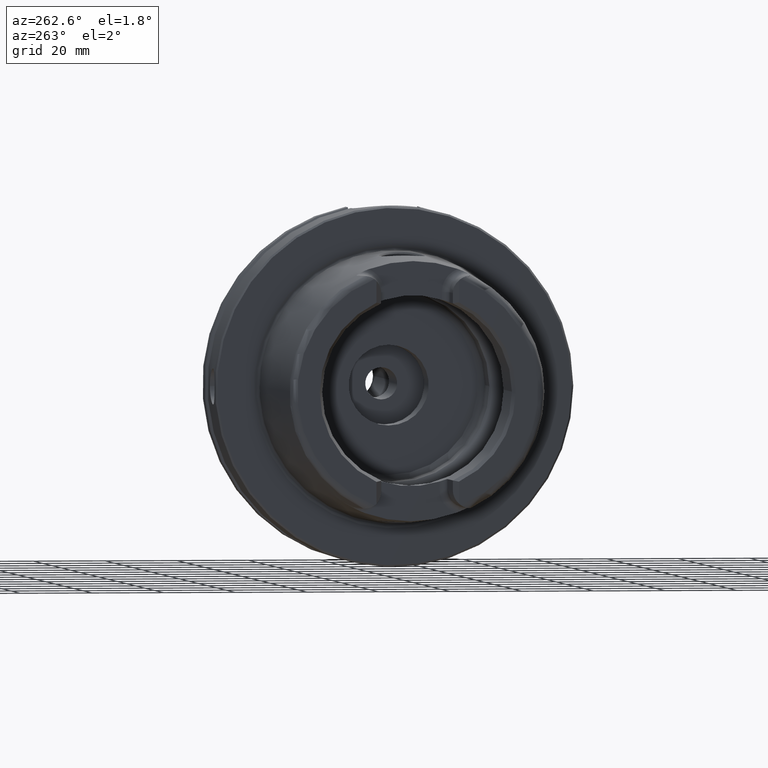
[diagram: clean part render]
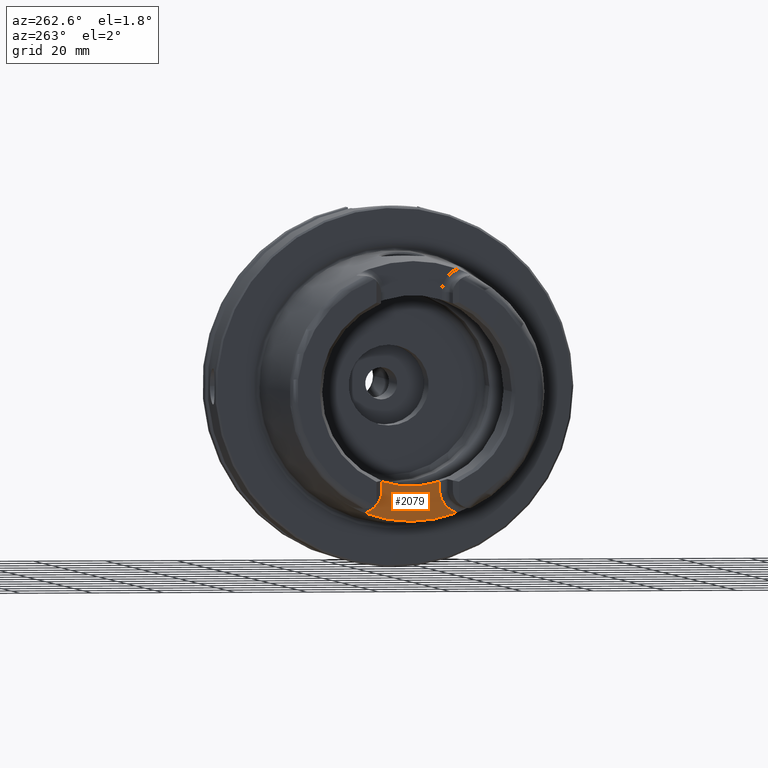
[diagram: same view with one face highlighted and labeled with its STEP entity id]
A machine part, auxiliary view. The second image highlights one B-rep face of the part: STEP entity #2079.
In plain terms, the highlighted planar face has unit normal (-1, 0, 0).
Its self-contained STEP definition (entity closure, byte-faithful):
#126=PLANE('',#2327);
#295=FACE_OUTER_BOUND('',#426,.T.);
#426=EDGE_LOOP('',(#1801,#1802,#1803,#1804,#1805,#1806));
#557=LINE('',#4424,#663);
#560=LINE('',#4436,#666);
#663=VECTOR('',#2861,10.);
#666=VECTOR('',#2876,10.);
#722=CIRCLE('',#2224,36.25399498998);
#773=CIRCLE('',#2321,6.88);
#776=CIRCLE('',#2328,26.5);
#777=CIRCLE('',#2329,6.88);
#895=VERTEX_POINT('',#3500);
#896=VERTEX_POINT('',#3511);
#997=VERTEX_POINT('',#4408);
#999=VERTEX_POINT('',#4413);
#1001=VERTEX_POINT('',#4433);
#1002=VERTEX_POINT('',#4435);
#1126=EDGE_CURVE('',#895,#896,#722,.T.);
#1280=EDGE_CURVE('',#997,#895,#773,.T.);
#1282=EDGE_CURVE('',#999,#997,#557,.T.);
#1287=EDGE_CURVE('',#1001,#999,#776,.T.);
#1288=EDGE_CURVE('',#1002,#1001,#560,.T.);
#1289=EDGE_CURVE('',#896,#1002,#777,.T.);
#1801=ORIENTED_EDGE('',*,*,#1280,.F.);
#1802=ORIENTED_EDGE('',*,*,#1282,.F.);
#1803=ORIENTED_EDGE('',*,*,#1287,.F.);
#1804=ORIENTED_EDGE('',*,*,#1288,.F.);
#1805=ORIENTED_EDGE('',*,*,#1289,.F.);
#1806=ORIENTED_EDGE('',*,*,#1126,.F.);
#2079=ADVANCED_FACE('',(#295),#126,.T.);
#2224=AXIS2_PLACEMENT_3D('',#3512,#2612,#2613);
#2321=AXIS2_PLACEMENT_3D('',#4410,#2857,#2858);
#2327=AXIS2_PLACEMENT_3D('',#4432,#2872,#2873);
#2328=AXIS2_PLACEMENT_3D('',#4434,#2874,#2875);
#2329=AXIS2_PLACEMENT_3D('',#4437,#2877,#2878);
#2612=DIRECTION('center_axis',(1.,0.,0.));
#2613=DIRECTION('ref_axis',(0.,1.,0.));
#2857=DIRECTION('center_axis',(-1.,0.,0.));
#2858=DIRECTION('ref_axis',(0.,0.510937901715381,-0.8596176246394));
#2861=DIRECTION('',(0.,0.,-1.));
#2872=DIRECTION('center_axis',(-1.,0.,0.));
#2873=DIRECTION('ref_axis',(0.,0.,1.));
#2874=DIRECTION('center_axis',(-1.,0.,0.));
#2875=DIRECTION('ref_axis',(0.,1.,0.));
#2876=DIRECTION('',(0.,0.,1.));
#2877=DIRECTION('center_axis',(-1.,0.,0.));
#2878=DIRECTION('ref_axis',(0.,-0.510937901715381,-0.8596176246394));
#3500=CARTESIAN_POINT('',(-35.,-12.7918651267415,-33.9222690767105));
#3511=CARTESIAN_POINT('',(-35.,12.7918651267415,-33.9222690767105));
#3512=CARTESIAN_POINT('Origin',(-35.,0.,0.));
#4408=CARTESIAN_POINT('',(-35.,-8.01,-27.37));
#4410=CARTESIAN_POINT('Origin',(-35.,-14.89,-27.37));
#4413=CARTESIAN_POINT('',(-35.,-8.01,-25.2604414054862));
#4424=CARTESIAN_POINT('',(-35.,-8.01,-28.685));
#4432=CARTESIAN_POINT('Origin',(-35.,8.88178419700125E-15,-30.));
#4433=CARTESIAN_POINT('',(-35.,8.01,-25.2604414054862));
#4434=CARTESIAN_POINT('Origin',(-35.,0.,0.));
#4435=CARTESIAN_POINT('',(-35.,8.01,-27.37));
#4436=CARTESIAN_POINT('',(-35.,8.01,-25.));
#4437=CARTESIAN_POINT('Origin',(-35.,14.89,-27.37));